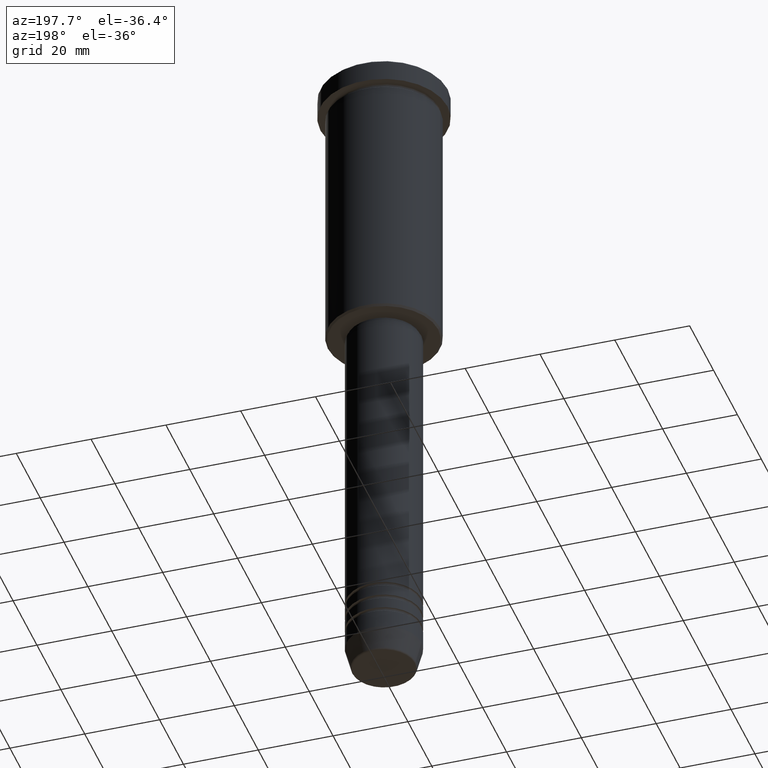
[diagram: clean part render]
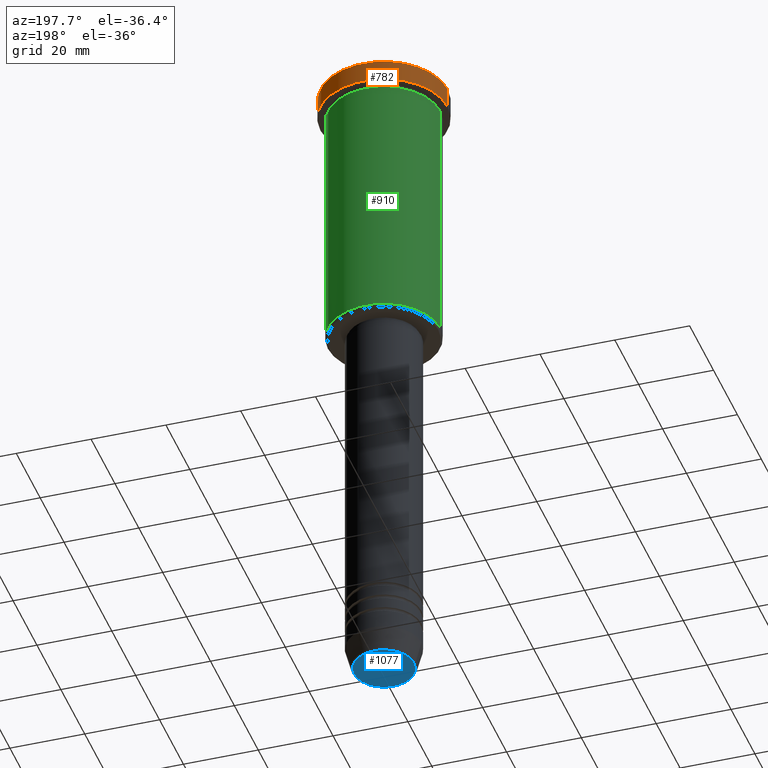
[diagram: same view with three faces highlighted in distinct colors, each labeled with its STEP entity id]
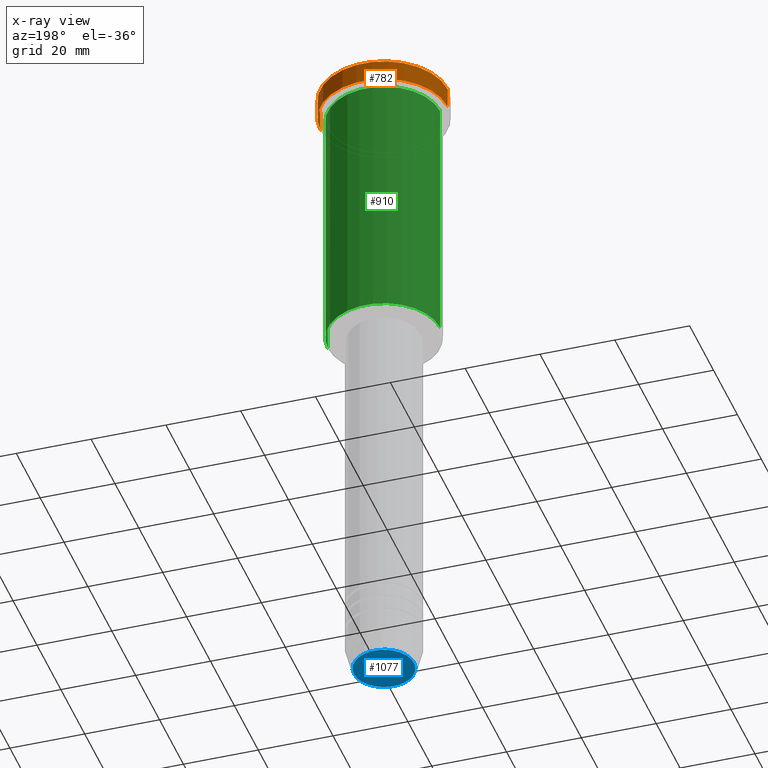
[diagram: x-ray of the same camera — body ghosted, the three highlighted faces saturated]
A machine part, auxiliary view with three faces highlighted in distinct colors.
The next image is the same camera in x-ray (body ghosted, the three faces saturated) — at least one of them is partly hidden behind the body in this view.
Their STEP definitions:

[orange] entity #782 — the highlighted cylindrical surface (partial cylindrical patch) has radius 17 mm, axis along (-0, -0, 1).
#32 = ORIENTED_EDGE ( 'NONE', *, *, #838, .T. ) ;
#39 = CYLINDRICAL_SURFACE ( 'NONE', #964, 17.00000000000000000 ) ;
#44 = VERTEX_POINT ( 'NONE', #450 ) ;
#87 = CARTESIAN_POINT ( 'NONE',  ( 17.00000000000000000, 0.000000000000000000, 0.000000000000000000 ) ) ;
#121 = VECTOR ( 'NONE', #619, 1000.000000000000000 ) ;
#146 = EDGE_CURVE ( 'NONE', #754, #303, #705, .T. ) ;
#169 = DIRECTION ( 'NONE',  ( -0.000000000000000000, -0.000000000000000000, 1.000000000000000000 ) ) ;
#190 = ORIENTED_EDGE ( 'NONE', *, *, #146, .T. ) ;
#213 = DIRECTION ( 'NONE',  ( 1.000000000000000000, 0.000000000000000000, 0.000000000000000000 ) ) ;
#220 = CARTESIAN_POINT ( 'NONE',  ( 0.000000000000000000, 0.000000000000000000, -5.999999999999994671 ) ) ;
#233 = EDGE_CURVE ( 'NONE', #1133, #44, #1159, .T. ) ;
#271 = AXIS2_PLACEMENT_3D ( 'NONE', #650, #283, #1031 ) ;
#283 = DIRECTION ( 'NONE',  ( 0.000000000000000000, 0.000000000000000000, -1.000000000000000000 ) ) ;
#290 = EDGE_CURVE ( 'NONE', #303, #44, #1034, .T. ) ;
#303 = VERTEX_POINT ( 'NONE', #636 ) ;
#381 = DIRECTION ( 'NONE',  ( 1.000000000000000000, 0.000000000000000000, 0.000000000000000000 ) ) ;
#419 = CIRCLE ( 'NONE', #1057, 17.00000000000000000 ) ;
#450 = CARTESIAN_POINT ( 'NONE',  ( 17.00000000000000000, 0.000000000000000000, -0.5000000000000213163 ) ) ;
#577 = ORIENTED_EDGE ( 'NONE', *, *, #290, .T. ) ;
#619 = DIRECTION ( 'NONE',  ( -0.000000000000000000, -0.000000000000000000, 1.000000000000000000 ) ) ;
#636 = CARTESIAN_POINT ( 'NONE',  ( -17.00000000000000000, 2.081899558550500280E-15, -0.5000000000000213163 ) ) ;
#643 = VECTOR ( 'NONE', #169, 1000.000000000000000 ) ;
#650 = CARTESIAN_POINT ( 'NONE',  ( 0.000000000000000000, 0.000000000000000000, -0.5000000000000213163 ) ) ;
#705 = LINE ( 'NONE', #989, #643 ) ;
#749 = DIRECTION ( 'NONE',  ( -0.000000000000000000, -0.000000000000000000, 1.000000000000000000 ) ) ;
#753 = FACE_OUTER_BOUND ( 'NONE', #830, .T. ) ;
#754 = VERTEX_POINT ( 'NONE', #1179 ) ;
#782 = ADVANCED_FACE ( 'NONE', ( #753 ), #39, .T. ) ;
#806 = CARTESIAN_POINT ( 'NONE',  ( 17.00000000000000000, 0.000000000000000000, -5.999999999999994671 ) ) ;
#830 = EDGE_LOOP ( 'NONE', ( #32, #190, #577, #892 ) ) ;
#838 = EDGE_CURVE ( 'NONE', #1133, #754, #419, .T. ) ;
#860 = DIRECTION ( 'NONE',  ( -0.000000000000000000, -0.000000000000000000, 1.000000000000000000 ) ) ;
#892 = ORIENTED_EDGE ( 'NONE', *, *, #233, .F. ) ;
#957 = CARTESIAN_POINT ( 'NONE',  ( 0.000000000000000000, 0.000000000000000000, 0.000000000000000000 ) ) ;
#964 = AXIS2_PLACEMENT_3D ( 'NONE', #957, #860, #381 ) ;
#989 = CARTESIAN_POINT ( 'NONE',  ( -17.00000000000000000, 2.081899558550500280E-15, 0.000000000000000000 ) ) ;
#1031 = DIRECTION ( 'NONE',  ( 1.000000000000000000, 0.000000000000000000, 0.000000000000000000 ) ) ;
#1034 = CIRCLE ( 'NONE', #271, 17.00000000000000000 ) ;
#1057 = AXIS2_PLACEMENT_3D ( 'NONE', #220, #749, #213 ) ;
#1133 = VERTEX_POINT ( 'NONE', #806 ) ;
#1159 = LINE ( 'NONE', #87, #121 ) ;
#1179 = CARTESIAN_POINT ( 'NONE',  ( -17.00000000000000000, 2.081899558550500280E-15, -5.999999999999994671 ) ) ;

[blue] entity #1077 — the highlighted planar face has unit normal (0, -0, 1).
#68 = PLANE ( 'NONE',  #1097 ) ;
#110 = CARTESIAN_POINT ( 'NONE',  ( -8.008641351423790411, 1.010348648938494750E-15, -180.0000000000000000 ) ) ;
#134 = EDGE_CURVE ( 'NONE', #349, #1153, #950, .T. ) ;
#153 = CARTESIAN_POINT ( 'NONE',  ( 0.000000000000000000, 0.000000000000000000, -180.0000000000000000 ) ) ;
#208 = CIRCLE ( 'NONE', #461, 8.008641351423790411 ) ;
#349 = VERTEX_POINT ( 'NONE', #110 ) ;
#420 = AXIS2_PLACEMENT_3D ( 'NONE', #790, #1082, #612 ) ;
#446 = DIRECTION ( 'NONE',  ( 1.000000000000000000, 0.000000000000000000, 0.000000000000000000 ) ) ;
#461 = AXIS2_PLACEMENT_3D ( 'NONE', #966, #880, #595 ) ;
#503 = ORIENTED_EDGE ( 'NONE', *, *, #1017, .T. ) ;
#595 = DIRECTION ( 'NONE',  ( 1.000000000000000000, 0.000000000000000000, 0.000000000000000000 ) ) ;
#612 = DIRECTION ( 'NONE',  ( 1.000000000000000000, 0.000000000000000000, 0.000000000000000000 ) ) ;
#654 = ORIENTED_EDGE ( 'NONE', *, *, #134, .T. ) ;
#790 = CARTESIAN_POINT ( 'NONE',  ( 0.000000000000000000, 0.000000000000000000, -180.0000000000000000 ) ) ;
#791 = DIRECTION ( 'NONE',  ( 0.000000000000000000, -0.000000000000000000, 1.000000000000000000 ) ) ;
#880 = DIRECTION ( 'NONE',  ( 0.000000000000000000, 0.000000000000000000, -1.000000000000000000 ) ) ;
#950 = CIRCLE ( 'NONE', #420, 8.008641351423790411 ) ;
#963 = EDGE_LOOP ( 'NONE', ( #503, #654 ) ) ;
#966 = CARTESIAN_POINT ( 'NONE',  ( 0.000000000000000000, 0.000000000000000000, -180.0000000000000000 ) ) ;
#971 = FACE_OUTER_BOUND ( 'NONE', #963, .T. ) ;
#1017 = EDGE_CURVE ( 'NONE', #1153, #349, #208, .T. ) ;
#1077 = ADVANCED_FACE ( 'NONE', ( #971 ), #68, .F. ) ;
#1082 = DIRECTION ( 'NONE',  ( 0.000000000000000000, 0.000000000000000000, -1.000000000000000000 ) ) ;
#1097 = AXIS2_PLACEMENT_3D ( 'NONE', #153, #791, #446 ) ;
#1153 = VERTEX_POINT ( 'NONE', #1177 ) ;
#1177 = CARTESIAN_POINT ( 'NONE',  ( 8.008641351423790411, 0.000000000000000000, -180.0000000000000000 ) ) ;

[green] entity #910 — the highlighted cylindrical surface (partial cylindrical patch) has radius 15 mm, axis along (-0, -0, 1).
#23 = AXIS2_PLACEMENT_3D ( 'NONE', #434, #199, #187 ) ;
#82 = AXIS2_PLACEMENT_3D ( 'NONE', #472, #1028, #216 ) ;
#114 = CYLINDRICAL_SURFACE ( 'NONE', #82, 15.00000000000000000 ) ;
#135 = DIRECTION ( 'NONE',  ( -0.000000000000000000, -0.000000000000000000, 1.000000000000000000 ) ) ;
#142 = VECTOR ( 'NONE', #198, 1000.000000000000000 ) ;
#150 = VERTEX_POINT ( 'NONE', #1007 ) ;
#166 = VERTEX_POINT ( 'NONE', #1084 ) ;
#187 = DIRECTION ( 'NONE',  ( -1.000000000000000000, 0.000000000000000000, 0.000000000000000000 ) ) ;
#198 = DIRECTION ( 'NONE',  ( -0.000000000000000000, -0.000000000000000000, 1.000000000000000000 ) ) ;
#199 = DIRECTION ( 'NONE',  ( -0.000000000000000000, -0.000000000000000000, 1.000000000000000000 ) ) ;
#216 = DIRECTION ( 'NONE',  ( 1.000000000000000000, 0.000000000000000000, 0.000000000000000000 ) ) ;
#229 = CARTESIAN_POINT ( 'NONE',  ( -15.00000000000000000, 1.836970198721029589E-15, 0.000000000000000000 ) ) ;
#262 = ORIENTED_EDGE ( 'NONE', *, *, #1116, .F. ) ;
#318 = VERTEX_POINT ( 'NONE', #564 ) ;
#363 = CARTESIAN_POINT ( 'NONE',  ( 0.000000000000000000, 0.000000000000000000, -6.999999999999995559 ) ) ;
#434 = CARTESIAN_POINT ( 'NONE',  ( 0.000000000000000000, 0.000000000000000000, -75.49999999999998579 ) ) ;
#445 = EDGE_CURVE ( 'NONE', #166, #150, #610, .T. ) ;
#472 = CARTESIAN_POINT ( 'NONE',  ( 0.000000000000000000, 0.000000000000000000, 0.000000000000000000 ) ) ;
#522 = ORIENTED_EDGE ( 'NONE', *, *, #1136, .F. ) ;
#561 = FACE_OUTER_BOUND ( 'NONE', #594, .T. ) ;
#564 = CARTESIAN_POINT ( 'NONE',  ( 15.00000000000000000, 0.000000000000000000, -75.49999999999998579 ) ) ;
#594 = EDGE_LOOP ( 'NONE', ( #691, #1045, #522, #262 ) ) ;
#610 = LINE ( 'NONE', #229, #797 ) ;
#630 = CARTESIAN_POINT ( 'NONE',  ( 15.00000000000000000, 0.000000000000000000, 0.000000000000000000 ) ) ;
#691 = ORIENTED_EDGE ( 'NONE', *, *, #719, .T. ) ;
#719 = EDGE_CURVE ( 'NONE', #318, #166, #1021, .T. ) ;
#726 = DIRECTION ( 'NONE',  ( -0.000000000000000000, -0.000000000000000000, 1.000000000000000000 ) ) ;
#743 = CIRCLE ( 'NONE', #1078, 15.00000000000000000 ) ;
#797 = VECTOR ( 'NONE', #135, 1000.000000000000000 ) ;
#827 = DIRECTION ( 'NONE',  ( 1.000000000000000000, 0.000000000000000000, 0.000000000000000000 ) ) ;
#874 = VERTEX_POINT ( 'NONE', #1115 ) ;
#910 = ADVANCED_FACE ( 'NONE', ( #561 ), #114, .T. ) ;
#1007 = CARTESIAN_POINT ( 'NONE',  ( -15.00000000000000000, 1.836970198721029589E-15, -6.999999999999995559 ) ) ;
#1012 = LINE ( 'NONE', #630, #142 ) ;
#1021 = CIRCLE ( 'NONE', #23, 15.00000000000000000 ) ;
#1028 = DIRECTION ( 'NONE',  ( -0.000000000000000000, -0.000000000000000000, 1.000000000000000000 ) ) ;
#1045 = ORIENTED_EDGE ( 'NONE', *, *, #445, .T. ) ;
#1078 = AXIS2_PLACEMENT_3D ( 'NONE', #363, #726, #827 ) ;
#1084 = CARTESIAN_POINT ( 'NONE',  ( -15.00000000000000000, 1.836970198721029589E-15, -75.49999999999998579 ) ) ;
#1115 = CARTESIAN_POINT ( 'NONE',  ( 15.00000000000000000, 0.000000000000000000, -6.999999999999995559 ) ) ;
#1116 = EDGE_CURVE ( 'NONE', #318, #874, #1012, .T. ) ;
#1136 = EDGE_CURVE ( 'NONE', #874, #150, #743, .T. ) ;